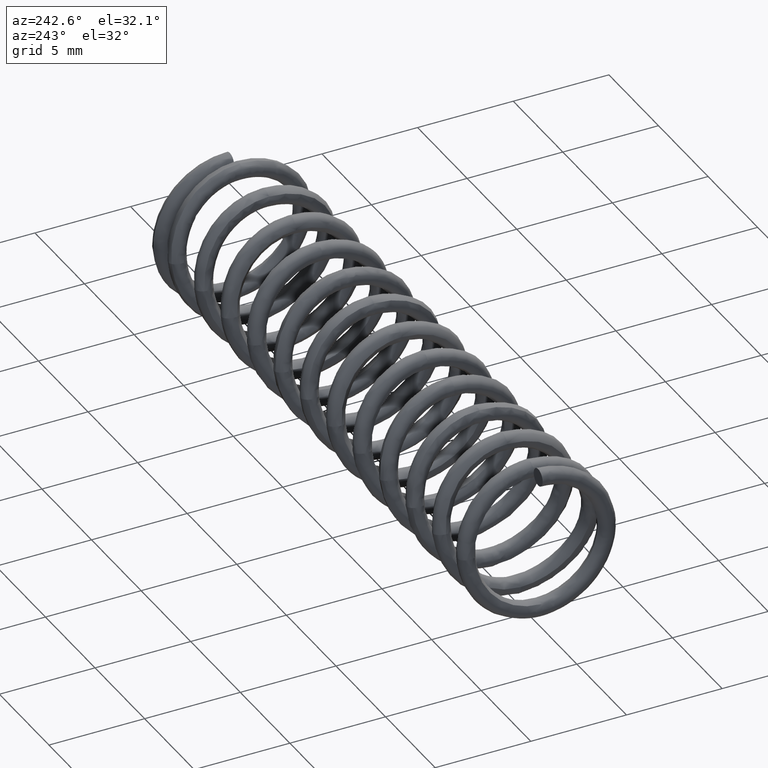
[diagram: clean part render]
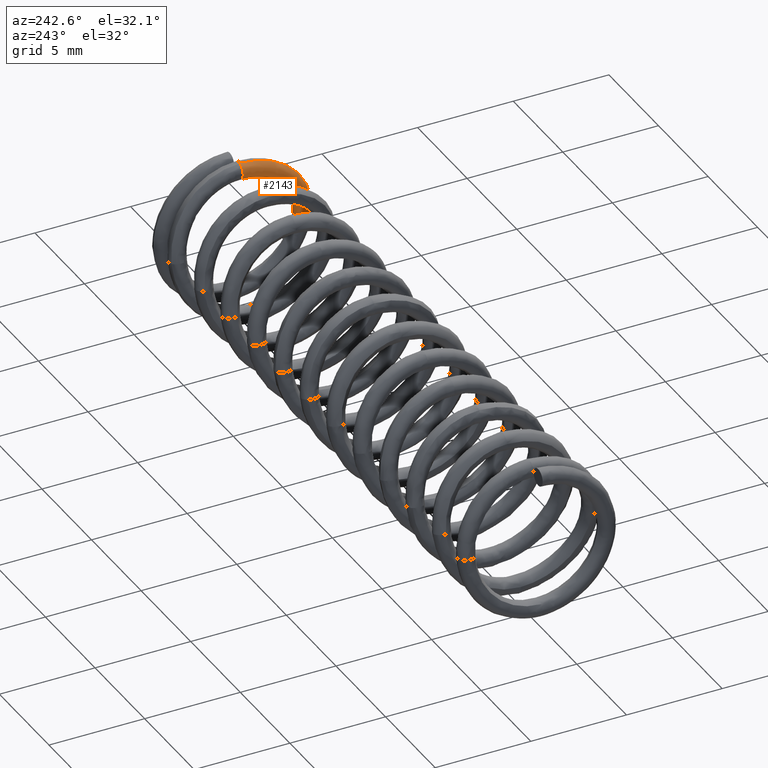
[diagram: same view with one face highlighted and labeled with its STEP entity id]
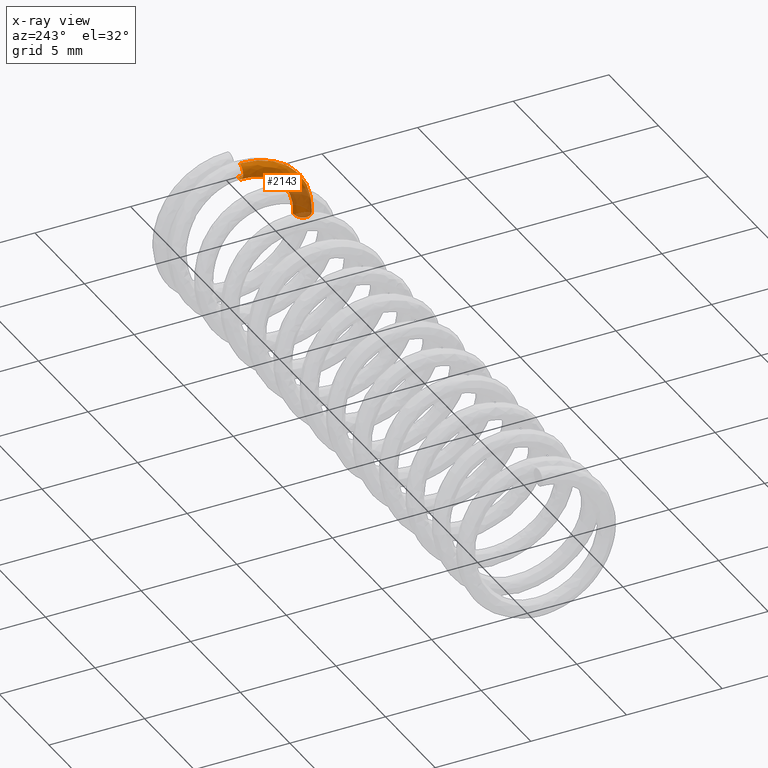
[diagram: x-ray of the same camera — body ghosted, the highlighted face saturated]
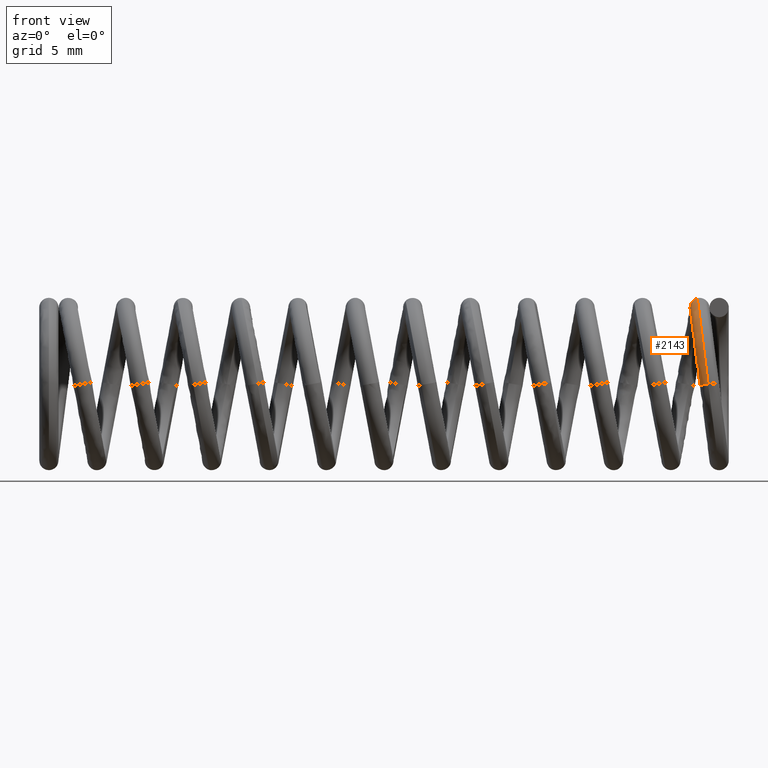
[diagram: same view with one face highlighted and labeled with its STEP entity id]
A machine part, auxiliary view. The second image highlights one B-rep face of the part: STEP entity #2143.
The next image is the same camera in x-ray: the body ghosted, the highlighted face saturated — about 29% of this face is hidden behind the body in this view.
A second angle (front view) of the same face is appended — the face is thin or edge-on in the first view.
In plain terms, the highlighted face is a freeform B-spline surface patch.
Its self-contained STEP definition (entity closure, byte-faithful):
#2143=ADVANCED_FACE('',(#2687),#2686,.T.);
#2686=( BOUNDED_SURFACE() B_SPLINE_SURFACE( 3,3,((#4965,#4966,#4967,#4968,#4969,#4970),(#4971,#4972,#4973,#4974,#4975,#4976),(#4977,#4978,#4979,#4980,#4981,#4982),(#4983,#4984,#4985,#4986,#4987,#4988),(#4989,#4990,#4991,#4992,#4993,#4994),(#4995,#4996,#4997,#4998,#4999,#5000)), .UNSPECIFIED.,.F.,.F.,.F.) B_SPLINE_SURFACE_WITH_KNOTS((4,2,4),(4,2,4),(5.00000000000E-01,7.50000000000E-01,1.00000000000E+00),(9.23511963857E-01,9.33092061244E-01,9.42672158631E-01), .UNSPECIFIED. ) GEOMETRIC_REPRESENTATION_ITEM() RATIONAL_B_SPLINE_SURFACE(((1.00000000000E+00,1.00000000000E+00,1.00000000000E+00,1.00000000000E+00,1.00000000000E+00,1.00000000000E+00),(1.00000000000E+00,1.00000000000E+00,1.00000000000E+00,1.00000000000E+00,1.00000000000E+00,1.00000000000E+00),(1.00000000000E+00,1.00000000000E+00,1.00000000000E+00,1.00000000000E+00,1.00000000000E+00,1.00000000000E+00),(1.00000000000E+00,1.00000000000E+00,1.00000000000E+00,1.00000000000E+00,1.00000000000E+00,1.00000000000E+00),(1.00000000000E+00,1.00000000000E+00,1.00000000000E+00,1.00000000000E+00,1.00000000000E+00,1.00000000000E+00),(1.00000000000E+00,1.00000000000E+00,1.00000000000E+00,1.00000000000E+00,1.00000000000E+00,1.00000000000E+00))) REPRESENTATION_ITEM('') SURFACE() );
#2687=FACE_OUTER_BOUND('',#5001,.T.);
#4965=CARTESIAN_POINT('',(-1.01228035924E+00,4.89858719659E-16,3.98576727841E+00));
#4966=CARTESIAN_POINT('',(-1.01228035924E+00,-1.04759395638E+00,3.98576727841E+00));
#4967=CARTESIAN_POINT('',(-9.57791366434E-01,-2.08559188330E+00,3.55590966853E+00));
#4968=CARTESIAN_POINT('',(-7.70292545224E-01,-3.56611457465E+00,2.07675230121E+00));
#4969=CARTESIAN_POINT('',(-6.38855398020E-01,-3.99642763987E+00,1.03985925104E+00));
#4970=CARTESIAN_POINT('',(-5.06140179618E-01,-3.99642763987E+00,-7.11636079656E-03));
#4971=CARTESIAN_POINT('',(-1.24044757266E+00,4.89858719659E-16,3.92697741979E+00));
#4972=CARTESIAN_POINT('',(-1.24044757266E+00,-1.03976479590E+00,3.92697741979E+00));
#4973=CARTESIAN_POINT('',(-1.18636664140E+00,-2.07003534254E+00,3.50033896208E+00));
#4974=CARTESIAN_POINT('',(-1.00025300776E+00,-3.53962035640E+00,2.03210918561E+00));
#4975=CARTESIAN_POINT('',(-8.69779453590E-01,-3.96679748930E+00,1.00281781383E+00));
#4976=CARTESIAN_POINT('',(-7.38033510837E-01,-3.96679748930E+00,-3.65112901061E-02));
#4977=CARTESIAN_POINT('',(-1.39455713703E+00,4.63604674103E-16,3.66588685418E+00));
#4978=CARTESIAN_POINT('',(-1.39455713703E+00,-9.76445377112E-01,3.66588685418E+00));
#4979=CARTESIAN_POINT('',(-1.34377645996E+00,-1.94421966651E+00,3.26528373511E+00));
#4980=CARTESIAN_POINT('',(-1.16886572250E+00,-3.32534470015E+00,1.88543236180E+00));
#4981=CARTESIAN_POINT('',(-1.04618536032E+00,-3.72715954649E+00,9.17620615759E-01));
#4982=CARTESIAN_POINT('',(-9.22278568514E-01,-3.72715954649E+00,-5.98662974171E-02));
#4983=CARTESIAN_POINT('',(-1.27697741979E+00,4.05894553291E-16,3.20955242735E+00));
#4984=CARTESIAN_POINT('',(-1.27697741979E+00,-8.52918622773E-01,3.20955242735E+00));
#4985=CARTESIAN_POINT('',(-1.23263504706E+00,-1.69877202339E+00,2.85974037585E+00));
#4986=CARTESIAN_POINT('',(-1.07957949132E+00,-2.90732481214E+00,1.65230210274E+00));
#4987=CARTESIAN_POINT('',(-9.72102485897E-01,-3.25966161523E+00,8.04427948865E-01));
#4988=CARTESIAN_POINT('',(-8.63488709895E-01,-3.25966161523E+00,-5.24140618175E-02));
#4989=CARTESIAN_POINT('',(-1.01588685419E+00,3.79640507736E-16,3.05544286297E+00));
#4990=CARTESIAN_POINT('',(-1.01588685419E+00,-8.03846073213E-01,3.05544286297E+00));
#4991=CARTESIAN_POINT('',(-9.74102178461E-01,-1.60126487447E+00,2.72580819892E+00));
#4992=CARTESIAN_POINT('',(-8.29728867250E-01,-2.74126117855E+00,1.58686318826E+00));
#4993=CARTESIAN_POINT('',(-7.28291585626E-01,-3.07394220956E+00,7.86635744333E-01));
#4994=CARTESIAN_POINT('',(-6.25753151603E-01,-3.07394220956E+00,-2.22785685129E-02));
#4995=CARTESIAN_POINT('',(-7.87719640770E-01,3.79640507736E-16,3.11423272159E+00));
#4996=CARTESIAN_POINT('',(-7.87719640770E-01,-8.11675233700E-01,3.11423272159E+00));
#4997=CARTESIAN_POINT('',(-7.45526903498E-01,-1.61682141523E+00,2.78137890537E+00));
#4998=CARTESIAN_POINT('',(-5.99768404714E-01,-2.76775539681E+00,1.63150630385E+00));
#4999=CARTESIAN_POINT('',(-4.97367530056E-01,-3.10357236013E+00,8.23677181547E-01));
#5000=CARTESIAN_POINT('',(-3.93859820383E-01,-3.10357236013E+00,7.11636079657E-03));
#5001=EDGE_LOOP('',(#7096,#7097,#7098,#7099));
#7096=ORIENTED_EDGE('',*,*,#7458,.T.);
#7097=ORIENTED_EDGE('',*,*,#7455,.T.);
#7098=ORIENTED_EDGE('',*,*,#7459,.F.);
#7099=ORIENTED_EDGE('',*,*,#7457,.F.);
#7455=EDGE_CURVE('',#8484,#8476,#8485,.T.);
#7457=EDGE_CURVE('',#8491,#8477,#8498,.T.);
#7458=EDGE_CURVE('',#8491,#8484,#8504,.T.);
#7459=EDGE_CURVE('',#8477,#8476,#8510,.T.);
#8476=VERTEX_POINT('',#9792);
#8477=VERTEX_POINT('',#9793);
#8484=VERTEX_POINT('',#9800);
#8485=(BOUNDED_CURVE() B_SPLINE_CURVE(3,(#9801,#9802,#9803,#9804,#9805,#9806),.UNSPECIFIED.,.F.,.F.) B_SPLINE_CURVE_WITH_KNOTS((4,2,4),(9.23511963857E-01,9.33092061244E-01,9.42672158631E-01),.UNSPECIFIED.) CURVE() GEOMETRIC_REPRESENTATION_ITEM() RATIONAL_B_SPLINE_CURVE((1.00000000000E+00,1.00000000000E+00,1.00000000000E+00,1.00000000000E+00,1.00000000000E+00,1.00000000000E+00)) REPRESENTATION_ITEM('') );
#8491=VERTEX_POINT('',#9807);
#8498=(BOUNDED_CURVE() B_SPLINE_CURVE(3,(#9814,#9815,#9816,#9817,#9818,#9819),.UNSPECIFIED.,.F.,.F.) B_SPLINE_CURVE_WITH_KNOTS((4,2,4),(9.23511963857E-01,9.33092061244E-01,9.42672158631E-01),.UNSPECIFIED.) CURVE() GEOMETRIC_REPRESENTATION_ITEM() RATIONAL_B_SPLINE_CURVE((1.00000000000E+00,1.00000000000E+00,1.00000000000E+00,1.00000000000E+00,1.00000000000E+00,1.00000000000E+00)) REPRESENTATION_ITEM('') );
#8504=(BOUNDED_CURVE() B_SPLINE_CURVE(3,(#9820,#9821,#9822,#9823,#9824,#9825),.UNSPECIFIED.,.F.,.F.) B_SPLINE_CURVE_WITH_KNOTS((4,2,4),(5.00000000000E-01,7.50000000000E-01,1.00000000000E+00),.UNSPECIFIED.) CURVE() GEOMETRIC_REPRESENTATION_ITEM() RATIONAL_B_SPLINE_CURVE((1.00000000000E+00,1.00000000000E+00,1.00000000000E+00,1.00000000000E+00,1.00000000000E+00,1.00000000000E+00)) REPRESENTATION_ITEM('') );
#8510=(BOUNDED_CURVE() B_SPLINE_CURVE(3,(#9826,#9827,#9828,#9829,#9830,#9831),.UNSPECIFIED.,.F.,.F.) B_SPLINE_CURVE_WITH_KNOTS((4,2,4),(5.00000000000E-01,7.50000000000E-01,1.00000000000E+00),.UNSPECIFIED.) CURVE() GEOMETRIC_REPRESENTATION_ITEM() RATIONAL_B_SPLINE_CURVE((1.00000000000E+00,1.00000000000E+00,1.00000000000E+00,1.00000000000E+00,1.00000000000E+00,1.00000000000E+00)) REPRESENTATION_ITEM('') );
#9792=CARTESIAN_POINT('',(-3.93859820383E-01,-3.10357236013E+00,7.11636079657E-03));
#9793=CARTESIAN_POINT('',(-5.06140179618E-01,-3.99642763987E+00,-7.11636079656E-03));
#9800=CARTESIAN_POINT('',(-7.87719640768E-01,1.89820253868E-16,3.11423272159E+00));
#9801=CARTESIAN_POINT('',(-7.87719640770E-01,3.79640507736E-16,3.11423272159E+00));
#9802=CARTESIAN_POINT('',(-7.87719640770E-01,-8.11675233700E-01,3.11423272159E+00));
#9803=CARTESIAN_POINT('',(-7.45526903498E-01,-1.61682141523E+00,2.78137890537E+00));
#9804=CARTESIAN_POINT('',(-5.99768404714E-01,-2.76775539681E+00,1.63150630385E+00));
#9805=CARTESIAN_POINT('',(-4.97367530056E-01,-3.10357236013E+00,8.23677181547E-01));
#9806=CARTESIAN_POINT('',(-3.93859820383E-01,-3.10357236013E+00,7.11636079657E-03));
#9807=CARTESIAN_POINT('',(-1.01228035924E+00,4.89858719659E-16,3.98576727841E+00));
#9814=CARTESIAN_POINT('',(-1.01228035924E+00,4.89858719659E-16,3.98576727841E+00));
#9815=CARTESIAN_POINT('',(-1.01228035924E+00,-1.04759395638E+00,3.98576727841E+00));
#9816=CARTESIAN_POINT('',(-9.57791366434E-01,-2.08559188330E+00,3.55590966853E+00));
#9817=CARTESIAN_POINT('',(-7.70292545224E-01,-3.56611457465E+00,2.07675230121E+00));
#9818=CARTESIAN_POINT('',(-6.38855398020E-01,-3.99642763987E+00,1.03985925104E+00));
#9819=CARTESIAN_POINT('',(-5.06140179618E-01,-3.99642763987E+00,-7.11636079656E-03));
#9820=CARTESIAN_POINT('',(-1.01228035924E+00,4.89858719659E-16,3.98576727841E+00));
#9821=CARTESIAN_POINT('',(-1.24044757266E+00,4.89858719659E-16,3.92697741979E+00));
#9822=CARTESIAN_POINT('',(-1.39455713703E+00,4.63604674103E-16,3.66588685418E+00));
#9823=CARTESIAN_POINT('',(-1.27697741979E+00,4.05894553291E-16,3.20955242735E+00));
#9824=CARTESIAN_POINT('',(-1.01588685419E+00,3.79640507736E-16,3.05544286297E+00));
#9825=CARTESIAN_POINT('',(-7.87719640770E-01,3.79640507736E-16,3.11423272159E+00));
#9826=CARTESIAN_POINT('',(-5.06140179618E-01,-3.99642763987E+00,-7.11636079656E-03));
#9827=CARTESIAN_POINT('',(-7.38033510837E-01,-3.96679748930E+00,-3.65112901061E-02));
#9828=CARTESIAN_POINT('',(-9.22278568514E-01,-3.72715954649E+00,-5.98662974171E-02));
#9829=CARTESIAN_POINT('',(-8.63488709895E-01,-3.25966161523E+00,-5.24140618175E-02));
#9830=CARTESIAN_POINT('',(-6.25753151603E-01,-3.07394220956E+00,-2.22785685129E-02));
#9831=CARTESIAN_POINT('',(-3.93859820383E-01,-3.10357236013E+00,7.11636079657E-03));